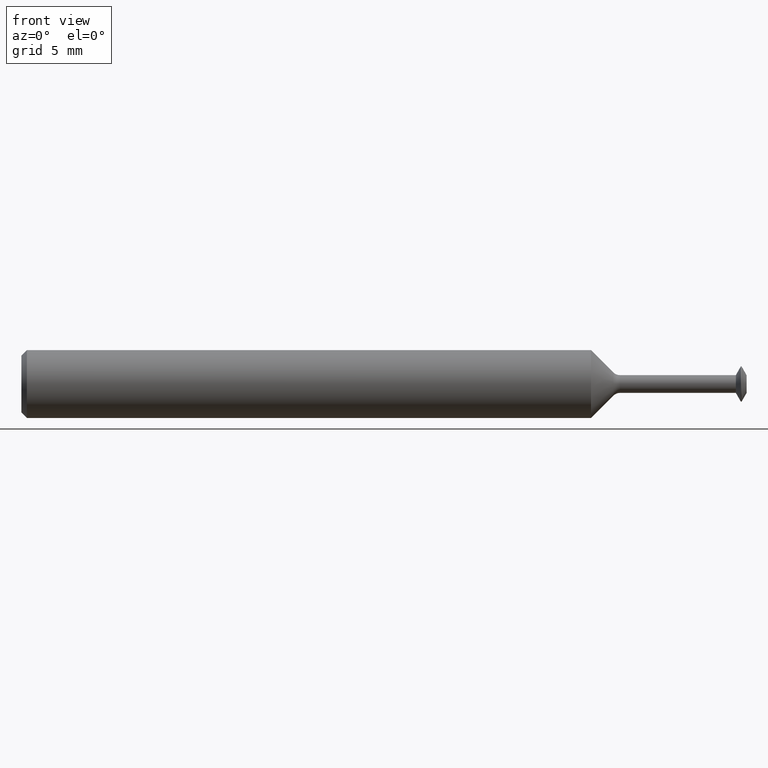
[diagram: clean part render]
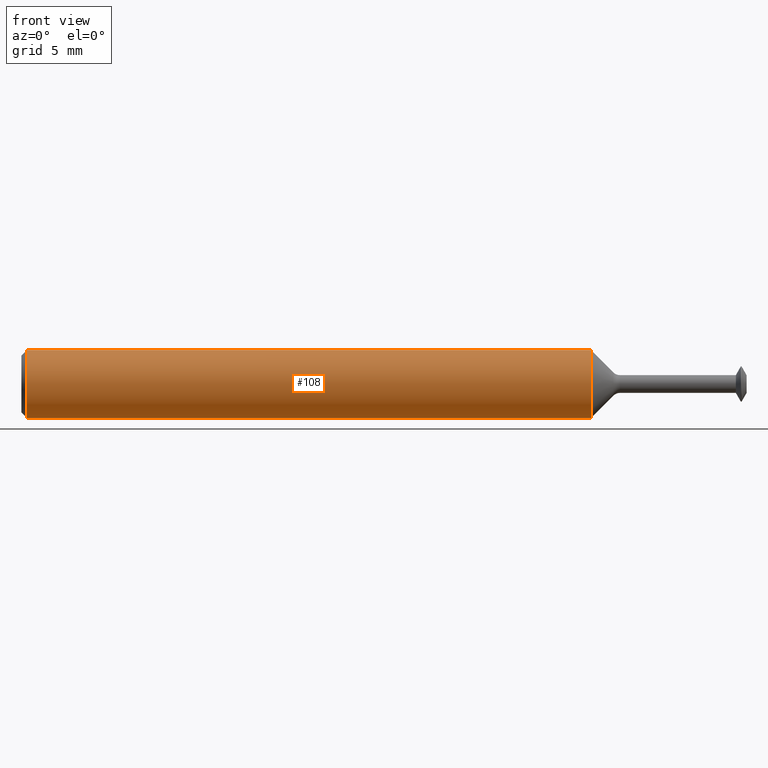
[diagram: same view with one face highlighted and labeled with its STEP entity id]
A machine part, front view. The second image highlights one B-rep face of the part: STEP entity #108.
In plain terms, the highlighted cylindrical surface (edge-blend (fillet) strip) has radius 2.3774 mm, axis along (-1, -0, -0).
Its self-contained STEP definition (entity closure, byte-faithful):
#36 = DIRECTION ( 'NONE',  ( 0.0000000000000000000, 0.0000000000000000000, 1.000000000000000000 ) ) ;
#48 = ORIENTED_EDGE ( 'NONE', *, *, #235, .F. ) ;
#55 = LINE ( 'NONE', #446, #186 ) ;
#59 = ORIENTED_EDGE ( 'NONE', *, *, #254, .T. ) ;
#107 = DIRECTION ( 'NONE',  ( -1.000000000000000000, -0.0000000000000000000, -0.0000000000000000000 ) ) ;
#108 = ADVANCED_FACE ( 'NONE', ( #435 ), #336, .T. ) ;
#110 = VERTEX_POINT ( 'NONE', #126 ) ;
#126 = CARTESIAN_POINT ( 'NONE',  ( 0.01499999999999997863, 1.146269404001922775E-17, -0.09360000000000001652 ) ) ;
#145 = AXIS2_PLACEMENT_3D ( 'NONE', #253, #107, #36 ) ;
#161 = EDGE_LOOP ( 'NONE', ( #48, #59, #217, #289 ) ) ;
#184 = EDGE_CURVE ( 'NONE', #227, #223, #193, .T. ) ;
#185 = DIRECTION ( 'NONE',  ( -1.000000000000000000, -0.0000000000000000000, -0.0000000000000000000 ) ) ;
#186 = VECTOR ( 'NONE', #185, 39.37007874015748143 ) ;
#193 = LINE ( 'NONE', #305, #239 ) ;
#213 = EDGE_CURVE ( 'NONE', #223, #110, #248, .T. ) ;
#217 = ORIENTED_EDGE ( 'NONE', *, *, #184, .T. ) ;
#223 = VERTEX_POINT ( 'NONE', #477 ) ;
#227 = VERTEX_POINT ( 'NONE', #311 ) ;
#235 = EDGE_CURVE ( 'NONE', #338, #110, #55, .T. ) ;
#239 = VECTOR ( 'NONE', #362, 39.37007874015748143 ) ;
#248 = CIRCLE ( 'NONE', #277, 0.09360000000000001652 ) ;
#249 = DIRECTION ( 'NONE',  ( 0.0000000000000000000, 0.0000000000000000000, 1.000000000000000000 ) ) ;
#253 = CARTESIAN_POINT ( 'NONE',  ( 0.0000000000000000000, 0.0000000000000000000, 0.0000000000000000000 ) ) ;
#254 = EDGE_CURVE ( 'NONE', #338, #227, #291, .T. ) ;
#276 = DIRECTION ( 'NONE',  ( -1.000000000000000000, -0.0000000000000000000, -0.0000000000000000000 ) ) ;
#277 = AXIS2_PLACEMENT_3D ( 'NONE', #427, #402, #438 ) ;
#289 = ORIENTED_EDGE ( 'NONE', *, *, #213, .T. ) ;
#291 = CIRCLE ( 'NONE', #368, 0.09360000000000001652 ) ;
#305 = CARTESIAN_POINT ( 'NONE',  ( 0.0000000000000000000, 0.0000000000000000000, 0.09360000000000001652 ) ) ;
#311 = CARTESIAN_POINT ( 'NONE',  ( 1.571090310662938583, 0.0000000000000000000, 0.09360000000000003040 ) ) ;
#336 = CYLINDRICAL_SURFACE ( 'NONE', #145, 0.09360000000000001652 ) ;
#338 = VERTEX_POINT ( 'NONE', #454 ) ;
#362 = DIRECTION ( 'NONE',  ( -1.000000000000000000, -0.0000000000000000000, -0.0000000000000000000 ) ) ;
#368 = AXIS2_PLACEMENT_3D ( 'NONE', #496, #276, #249 ) ;
#402 = DIRECTION ( 'NONE',  ( 1.000000000000000000, 0.0000000000000000000, 0.0000000000000000000 ) ) ;
#427 = CARTESIAN_POINT ( 'NONE',  ( 0.01499999999999997863, 0.0000000000000000000, 0.0000000000000000000 ) ) ;
#435 = FACE_OUTER_BOUND ( 'NONE', #161, .T. ) ;
#438 = DIRECTION ( 'NONE',  ( 0.0000000000000000000, 0.0000000000000000000, -1.000000000000000000 ) ) ;
#446 = CARTESIAN_POINT ( 'NONE',  ( 0.0000000000000000000, 1.146269404001922775E-17, -0.09360000000000001652 ) ) ;
#454 = CARTESIAN_POINT ( 'NONE',  ( 1.571090310662938583, 1.146269404001922930E-17, -0.09360000000000003040 ) ) ;
#477 = CARTESIAN_POINT ( 'NONE',  ( 0.01499999999999997863, 0.0000000000000000000, 0.09360000000000001652 ) ) ;
#496 = CARTESIAN_POINT ( 'NONE',  ( 1.571090310662938583, 0.0000000000000000000, 0.0000000000000000000 ) ) ;